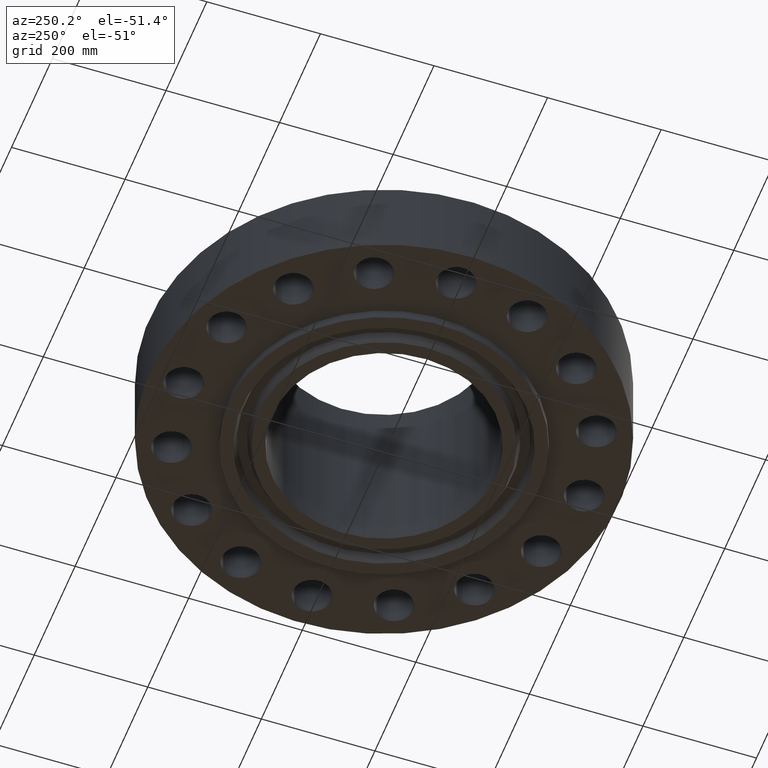
[diagram: clean part render]
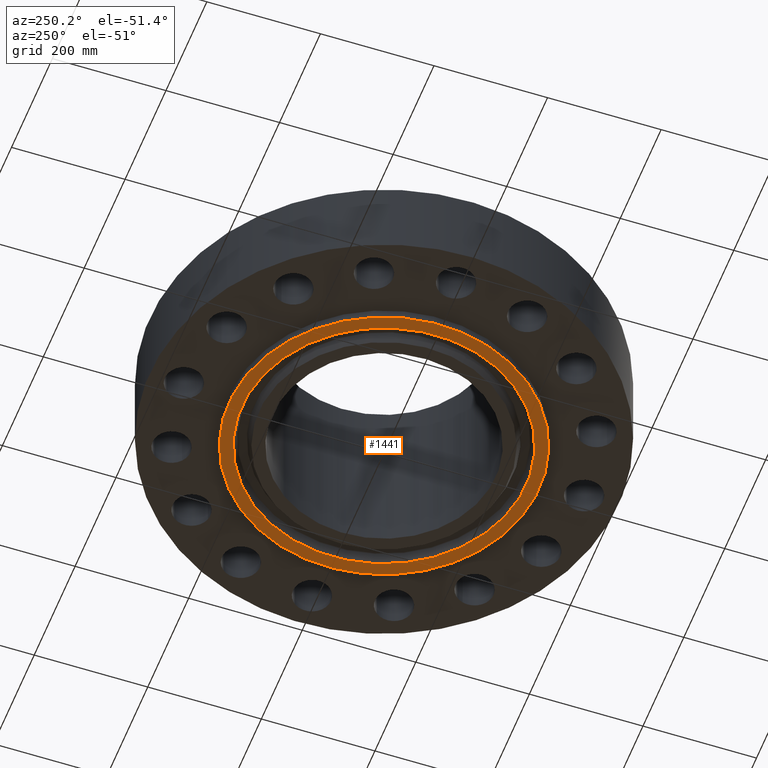
[diagram: same view with one face highlighted and labeled with its STEP entity id]
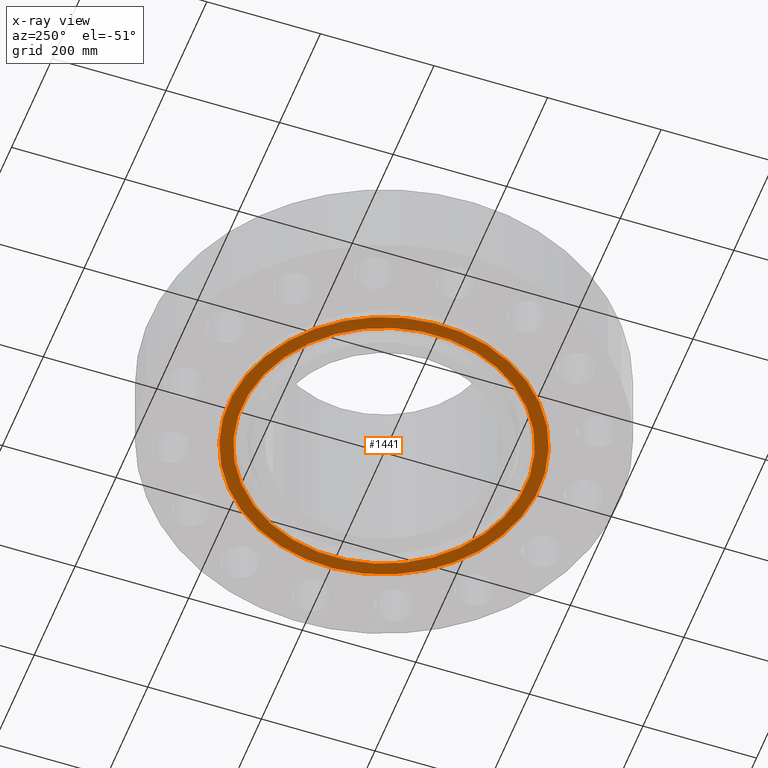
[diagram: x-ray of the same camera — body ghosted, the highlighted face saturated]
A machine part, auxiliary view. The second image highlights one B-rep face of the part: STEP entity #1441.
The next image is the same camera in x-ray: the body ghosted, the highlighted face saturated — about 0% of this face is hidden behind the body in this view.
In plain terms, the highlighted planar face has unit normal (0, 0, -1).
Its self-contained STEP definition (entity closure, byte-faithful):
#431=AXIS2_PLACEMENT_3D('Circle Axis2P3D',#429,#430,$) ;
#466=AXIS2_PLACEMENT_3D('Circle Axis2P3D',#464,#465,$) ;
#1417=AXIS2_PLACEMENT_3D('Plane Axis2P3D',#1414,#1415,#1416) ;
#1425=AXIS2_PLACEMENT_3D('Circle Axis2P3D',#1423,#1424,$) ;
#1434=AXIS2_PLACEMENT_3D('Circle Axis2P3D',#1432,#1433,$) ;
#429=CARTESIAN_POINT('Axis2P3D Location',(0.,0.,-0.688000000003)) ;
#433=CARTESIAN_POINT('Vertex',(-5.15382454002,-9.43401254036,-0.688000000003)) ;
#435=CARTESIAN_POINT('Vertex',(5.15382454002,9.43401254036,-0.688000000003)) ;
#464=CARTESIAN_POINT('Axis2P3D Location',(0.,0.,-0.688000000003)) ;
#1414=CARTESIAN_POINT('Axis2P3D Location',(0.,7.75000000003,-0.688000000003)) ;
#1423=CARTESIAN_POINT('Axis2P3D Location',(-1.67844740731E-015,-5.59482469102E-015,-0.688000000003)) ;
#1427=CARTESIAN_POINT('Vertex',(4.71946500204,-8.63892273928,-0.688000000003)) ;
#1429=CARTESIAN_POINT('Vertex',(-4.71946500204,8.63892273928,-0.688000000003)) ;
#1432=CARTESIAN_POINT('Axis2P3D Location',(8.39223703654E-016,2.23792987641E-015,-0.688000000003)) ;
#430=DIRECTION('Axis2P3D Direction',(0.,0.,-0.0393700787402)) ;
#465=DIRECTION('Axis2P3D Direction',(0.,0.,-0.0393700787402)) ;
#1415=DIRECTION('Axis2P3D Direction',(0.,0.,-0.0393700787402)) ;
#1416=DIRECTION('Axis2P3D XDirection',(0.0393700787402,0.,0.)) ;
#1424=DIRECTION('Axis2P3D Direction',(0.,0.,-0.0393700787402)) ;
#1433=DIRECTION('Axis2P3D Direction',(0.,0.,-0.0393700787402)) ;
#1420=ORIENTED_EDGE('',*,*,#437,.T.) ;
#1421=ORIENTED_EDGE('',*,*,#468,.T.) ;
#1438=ORIENTED_EDGE('',*,*,#1431,.F.) ;
#1439=ORIENTED_EDGE('',*,*,#1436,.F.) ;
#1440=FACE_BOUND('',#1437,.T.) ;
#1441=ADVANCED_FACE('PartBody',(#1422,#1440),#1418,.T.) ;
#432=CIRCLE('generated circle',#431,10.75) ;
#467=CIRCLE('generated circle',#466,10.75) ;
#1426=CIRCLE('generated circle',#1425,9.84400000004) ;
#1435=CIRCLE('generated circle',#1434,9.84400000004) ;
#437=EDGE_CURVE('',#434,#436,#432,.T.) ;
#468=EDGE_CURVE('',#436,#434,#467,.T.) ;
#1431=EDGE_CURVE('',#1428,#1430,#1426,.T.) ;
#1436=EDGE_CURVE('',#1430,#1428,#1435,.T.) ;
#1419=EDGE_LOOP('',(#1420,#1421)) ;
#1437=EDGE_LOOP('',(#1438,#1439)) ;
#1422=FACE_OUTER_BOUND('',#1419,.T.) ;
#1418=PLANE('',#1417) ;
#434=VERTEX_POINT('',#433) ;
#436=VERTEX_POINT('',#435) ;
#1428=VERTEX_POINT('',#1427) ;
#1430=VERTEX_POINT('',#1429) ;